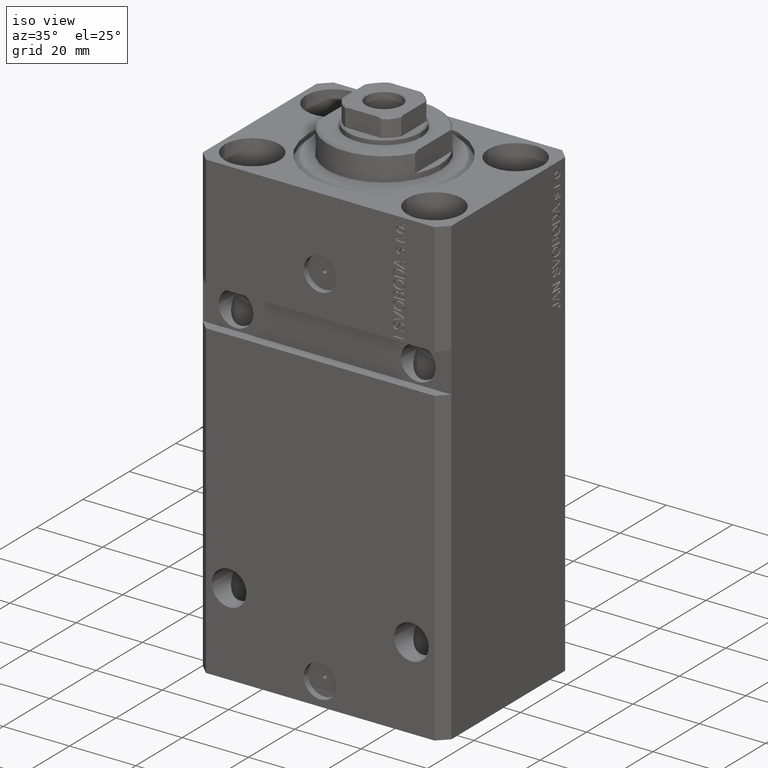
[diagram: clean part render]
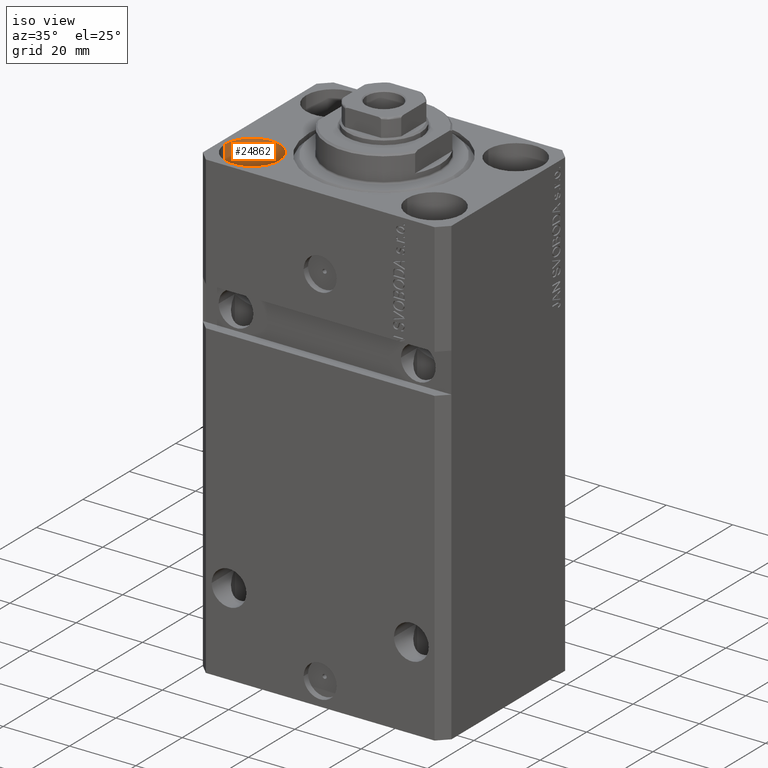
[diagram: same view with one face highlighted and labeled with its STEP entity id]
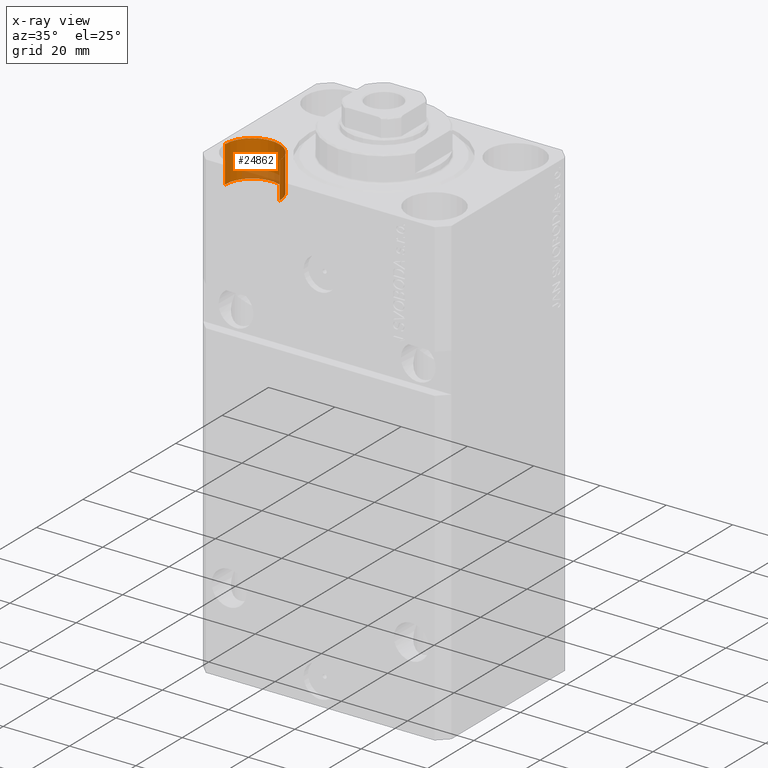
[diagram: x-ray of the same camera — body ghosted, the highlighted face saturated]
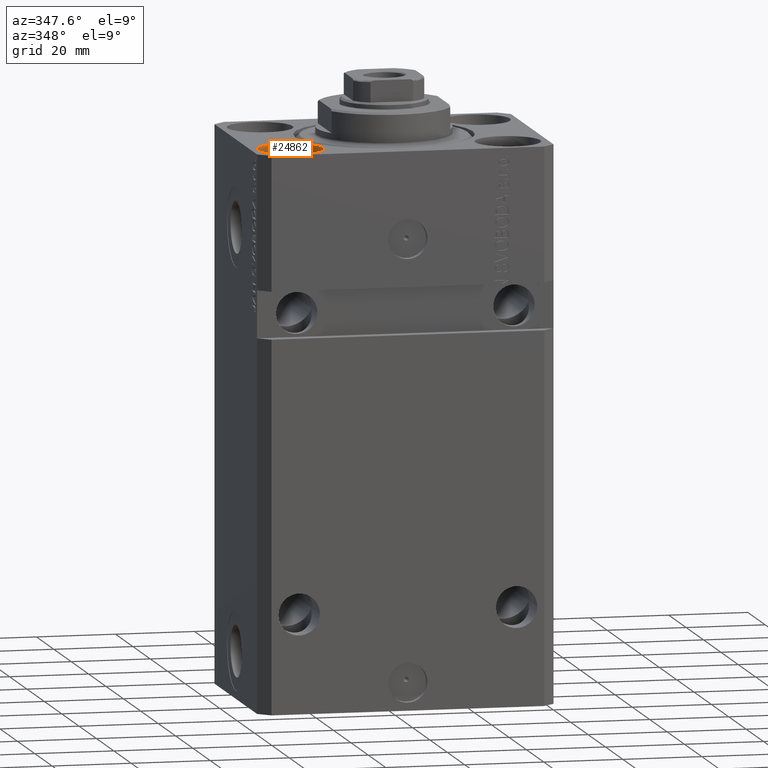
[diagram: same view with one face highlighted and labeled with its STEP entity id]
A machine part, iso view. The second image highlights one B-rep face of the part: STEP entity #24862.
The next image is the same camera in x-ray: the body ghosted, the highlighted face saturated — about 14% of this face is hidden behind the body in this view.
A second angle (auxiliary view) of the same face is appended — the face is thin or edge-on in the first view.
In plain terms, the highlighted cylindrical surface (edge-blend (fillet) strip) has radius 8.25 mm, axis along (0, 0, 1).
Its self-contained STEP definition (entity closure, byte-faithful):
#366 = CARTESIAN_POINT ( 'NONE',  ( -27.50000000000000355, -17.50000000000000000, 0.000000000000000000 ) ) ;
#1035 = CARTESIAN_POINT ( 'NONE',  ( -35.75000000000000711, -17.50000000000000000, -11.00000000000000000 ) ) ;
#1461 = CYLINDRICAL_SURFACE ( 'NONE', #5932, 8.250000000000000000 ) ;
#1703 = CARTESIAN_POINT ( 'NONE',  ( -19.25000000000000355, -17.50000000000000000, -11.00000000000000000 ) ) ;
#1822 = ORIENTED_EDGE ( 'NONE', *, *, #11358, .T. ) ;
#2692 = EDGE_LOOP ( 'NONE', ( #18032, #26192, #1822, #6872 ) ) ;
#4533 = VERTEX_POINT ( 'NONE', #44365 ) ;
#4560 = DIRECTION ( 'NONE',  ( 1.000000000000000000, 0.000000000000000000, 0.000000000000000000 ) ) ;
#5658 = VECTOR ( 'NONE', #32292, 1000.000000000000000 ) ;
#5932 = AXIS2_PLACEMENT_3D ( 'NONE', #42960, #15216, #31706 ) ;
#6872 = ORIENTED_EDGE ( 'NONE', *, *, #23905, .T. ) ;
#7922 = CARTESIAN_POINT ( 'NONE',  ( -19.25000000000000355, -17.50000000000000000, -11.00000000000000000 ) ) ;
#8159 = EDGE_CURVE ( 'NONE', #34126, #4533, #31530, .T. ) ;
#11358 = EDGE_CURVE ( 'NONE', #34126, #44004, #28691, .T. ) ;
#12078 = AXIS2_PLACEMENT_3D ( 'NONE', #21500, #38409, #4560 ) ;
#15216 = DIRECTION ( 'NONE',  ( -0.000000000000000000, -0.000000000000000000, 1.000000000000000000 ) ) ;
#18032 = ORIENTED_EDGE ( 'NONE', *, *, #20224, .F. ) ;
#18182 = DIRECTION ( 'NONE',  ( 1.000000000000000000, 0.000000000000000000, 0.000000000000000000 ) ) ;
#20224 = EDGE_CURVE ( 'NONE', #4533, #28968, #31944, .T. ) ;
#21500 = CARTESIAN_POINT ( 'NONE',  ( -27.50000000000000355, -17.50000000000000000, -11.00000000000000000 ) ) ;
#23905 = EDGE_CURVE ( 'NONE', #44004, #28968, #25388, .T. ) ;
#24862 = ADVANCED_FACE ( 'NONE', ( #29212 ), #1461, .F. ) ;
#25388 = CIRCLE ( 'NONE', #39752, 8.250000000000000000 ) ;
#26000 = CARTESIAN_POINT ( 'NONE',  ( -19.25000000000000355, -17.50000000000000000, 0.000000000000000000 ) ) ;
#26192 = ORIENTED_EDGE ( 'NONE', *, *, #8159, .F. ) ;
#27674 = DIRECTION ( 'NONE',  ( 0.000000000000000000, 0.000000000000000000, 1.000000000000000000 ) ) ;
#28691 = LINE ( 'NONE', #7922, #5658 ) ;
#28968 = VERTEX_POINT ( 'NONE', #42718 ) ;
#29212 = FACE_OUTER_BOUND ( 'NONE', #2692, .T. ) ;
#31530 = CIRCLE ( 'NONE', #12078, 8.250000000000000000 ) ;
#31706 = DIRECTION ( 'NONE',  ( 1.000000000000000000, 0.000000000000000000, 0.000000000000000000 ) ) ;
#31944 = LINE ( 'NONE', #1035, #33188 ) ;
#32292 = DIRECTION ( 'NONE',  ( -0.000000000000000000, -0.000000000000000000, 1.000000000000000000 ) ) ;
#33188 = VECTOR ( 'NONE', #34867, 1000.000000000000000 ) ;
#34126 = VERTEX_POINT ( 'NONE', #1703 ) ;
#34867 = DIRECTION ( 'NONE',  ( -0.000000000000000000, -0.000000000000000000, 1.000000000000000000 ) ) ;
#38409 = DIRECTION ( 'NONE',  ( 0.000000000000000000, 0.000000000000000000, 1.000000000000000000 ) ) ;
#39752 = AXIS2_PLACEMENT_3D ( 'NONE', #366, #27674, #18182 ) ;
#42718 = CARTESIAN_POINT ( 'NONE',  ( -35.75000000000000711, -17.50000000000000000, 0.000000000000000000 ) ) ;
#42960 = CARTESIAN_POINT ( 'NONE',  ( -27.50000000000000355, -17.50000000000000000, -11.00000000000000000 ) ) ;
#44004 = VERTEX_POINT ( 'NONE', #26000 ) ;
#44365 = CARTESIAN_POINT ( 'NONE',  ( -35.75000000000000711, -17.50000000000000000, -11.00000000000000000 ) ) ;